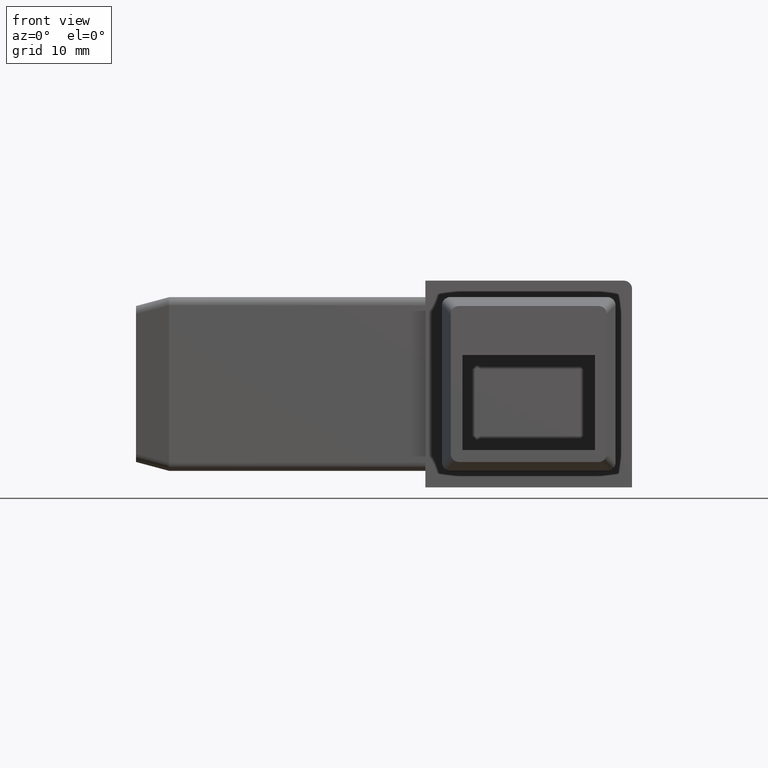
[diagram: clean part render]
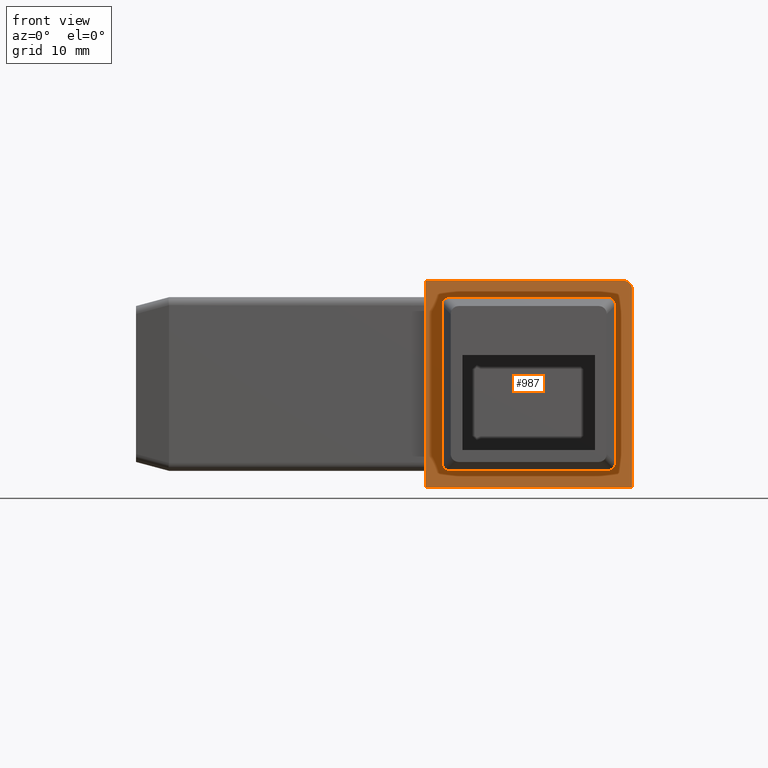
[diagram: same view with one face highlighted and labeled with its STEP entity id]
A machine part, front view. The second image highlights one B-rep face of the part: STEP entity #987.
In plain terms, the highlighted planar face has unit normal (0, -1, 0).
Its self-contained STEP definition (entity closure, byte-faithful):
#21=FACE_BOUND('',#174,.T.);
#53=PLANE('',#1104);
#58=CIRCLE('',#1047,1.);
#59=CIRCLE('',#1057,1.);
#60=CIRCLE('',#1066,1.);
#61=CIRCLE('',#1076,1.);
#65=CIRCLE('',#1086,1.);
#118=FACE_OUTER_BOUND('',#173,.T.);
#173=EDGE_LOOP('',(#904,#905,#906,#907,#908));
#174=EDGE_LOOP('',(#909,#910,#911,#912,#913,#914,#915,#916));
#244=LINE('',#1527,#339);
#252=LINE('',#1552,#347);
#263=LINE('',#1587,#358);
#268=LINE('',#1602,#363);
#274=LINE('',#1649,#369);
#277=LINE('',#1655,#372);
#300=LINE('',#1703,#395);
#301=LINE('',#1705,#396);
#339=VECTOR('',#1234,10.);
#347=VECTOR('',#1260,10.);
#358=VECTOR('',#1293,10.);
#363=VECTOR('',#1312,10.);
#369=VECTOR('',#1334,10.);
#372=VECTOR('',#1339,10.);
#395=VECTOR('',#1390,10.);
#396=VECTOR('',#1393,10.);
#437=VERTEX_POINT('',#1508);
#438=VERTEX_POINT('',#1509);
#444=VERTEX_POINT('',#1526);
#449=VERTEX_POINT('',#1539);
#450=VERTEX_POINT('',#1540);
#455=VERTEX_POINT('',#1560);
#465=VERTEX_POINT('',#1586);
#467=VERTEX_POINT('',#1594);
#475=VERTEX_POINT('',#1641);
#476=VERTEX_POINT('',#1643);
#477=VERTEX_POINT('',#1647);
#479=VERTEX_POINT('',#1653);
#490=VERTEX_POINT('',#1701);
#545=EDGE_CURVE('',#437,#438,#58,.F.);
#554=EDGE_CURVE('',#444,#438,#244,.T.);
#560=EDGE_CURVE('',#449,#450,#59,.F.);
#567=EDGE_CURVE('',#437,#450,#252,.T.);
#571=EDGE_CURVE('',#444,#455,#60,.F.);
#584=EDGE_CURVE('',#465,#455,#263,.T.);
#588=EDGE_CURVE('',#465,#467,#61,.F.);
#592=EDGE_CURVE('',#449,#467,#268,.T.);
#601=EDGE_CURVE('',#475,#476,#65,.T.);
#604=EDGE_CURVE('',#477,#475,#274,.T.);
#607=EDGE_CURVE('',#477,#479,#277,.T.);
#631=EDGE_CURVE('',#490,#479,#300,.T.);
#632=EDGE_CURVE('',#476,#490,#301,.T.);
#904=ORIENTED_EDGE('',*,*,#601,.F.);
#905=ORIENTED_EDGE('',*,*,#604,.F.);
#906=ORIENTED_EDGE('',*,*,#607,.T.);
#907=ORIENTED_EDGE('',*,*,#631,.F.);
#908=ORIENTED_EDGE('',*,*,#632,.F.);
#909=ORIENTED_EDGE('',*,*,#584,.T.);
#910=ORIENTED_EDGE('',*,*,#571,.F.);
#911=ORIENTED_EDGE('',*,*,#554,.T.);
#912=ORIENTED_EDGE('',*,*,#545,.F.);
#913=ORIENTED_EDGE('',*,*,#567,.T.);
#914=ORIENTED_EDGE('',*,*,#560,.F.);
#915=ORIENTED_EDGE('',*,*,#592,.T.);
#916=ORIENTED_EDGE('',*,*,#588,.F.);
#987=ADVANCED_FACE('',(#118,#21),#53,.T.);
#1047=AXIS2_PLACEMENT_3D('',#1510,#1217,#1218);
#1057=AXIS2_PLACEMENT_3D('',#1541,#1246,#1247);
#1066=AXIS2_PLACEMENT_3D('',#1561,#1270,#1271);
#1076=AXIS2_PLACEMENT_3D('',#1595,#1302,#1303);
#1086=AXIS2_PLACEMENT_3D('',#1644,#1328,#1329);
#1104=AXIS2_PLACEMENT_3D('',#1706,#1394,#1395);
#1217=DIRECTION('center_axis',(0.,1.,0.));
#1218=DIRECTION('ref_axis',(-0.707106781186548,0.,-0.707106781186548));
#1234=DIRECTION('',(-1.,0.,2.11471052309554E-16));
#1246=DIRECTION('center_axis',(0.,1.,0.));
#1247=DIRECTION('ref_axis',(-0.707106781186548,0.,0.707106781186547));
#1260=DIRECTION('',(-1.98254111540207E-16,0.,1.));
#1270=DIRECTION('center_axis',(0.,1.,0.));
#1271=DIRECTION('ref_axis',(0.707106781186547,0.,-0.707106781186548));
#1293=DIRECTION('',(-2.11471052309554E-16,0.,-1.));
#1302=DIRECTION('center_axis',(0.,1.,0.));
#1303=DIRECTION('ref_axis',(0.707106781186548,0.,0.707106781186547));
#1312=DIRECTION('',(1.,0.,-2.64338815386942E-17));
#1328=DIRECTION('center_axis',(0.,1.,0.));
#1329=DIRECTION('ref_axis',(0.707106781186548,0.,0.707106781186548));
#1334=DIRECTION('',(1.,0.,0.));
#1339=DIRECTION('',(0.,0.,-1.));
#1390=DIRECTION('',(-1.,0.,0.));
#1393=DIRECTION('',(0.,0.,-1.));
#1394=DIRECTION('center_axis',(0.,-1.,0.));
#1395=DIRECTION('ref_axis',(1.,0.,0.));
#1508=CARTESIAN_POINT('',(-10.5,-12.5,-9.5));
#1509=CARTESIAN_POINT('',(-9.5,-12.5,-10.5));
#1510=CARTESIAN_POINT('Origin',(-9.5,-12.5,-9.5));
#1526=CARTESIAN_POINT('',(9.5,-12.5,-10.5));
#1527=CARTESIAN_POINT('',(-11.5,-12.5,-10.5));
#1539=CARTESIAN_POINT('',(-9.5,-12.5,10.5));
#1540=CARTESIAN_POINT('',(-10.5,-12.5,9.5));
#1541=CARTESIAN_POINT('Origin',(-9.5,-12.5,9.5));
#1552=CARTESIAN_POINT('',(-10.5,-12.5,5.25));
#1560=CARTESIAN_POINT('',(10.5,-12.5,-9.5));
#1561=CARTESIAN_POINT('Origin',(9.5,-12.5,-9.5));
#1586=CARTESIAN_POINT('',(10.5,-12.5,9.5));
#1587=CARTESIAN_POINT('',(10.5,-12.5,-5.25));
#1594=CARTESIAN_POINT('',(9.5,-12.5,10.5));
#1595=CARTESIAN_POINT('Origin',(9.5,-12.5,9.5));
#1602=CARTESIAN_POINT('',(-0.999999999999999,-12.5,10.5));
#1641=CARTESIAN_POINT('',(11.5,-12.5,12.5));
#1643=CARTESIAN_POINT('',(12.5,-12.5,11.5));
#1644=CARTESIAN_POINT('Origin',(11.5,-12.5,11.5));
#1647=CARTESIAN_POINT('',(-12.5,-12.5,12.5));
#1649=CARTESIAN_POINT('',(12.5,-12.5,12.5));
#1653=CARTESIAN_POINT('',(-12.5,-12.5,-12.5));
#1655=CARTESIAN_POINT('',(-12.5,-12.5,0.));
#1701=CARTESIAN_POINT('',(12.5,-12.5,-12.5));
#1703=CARTESIAN_POINT('',(12.5,-12.5,-12.5));
#1705=CARTESIAN_POINT('',(12.5,-12.5,0.));
#1706=CARTESIAN_POINT('Origin',(-12.5,-12.5,0.));